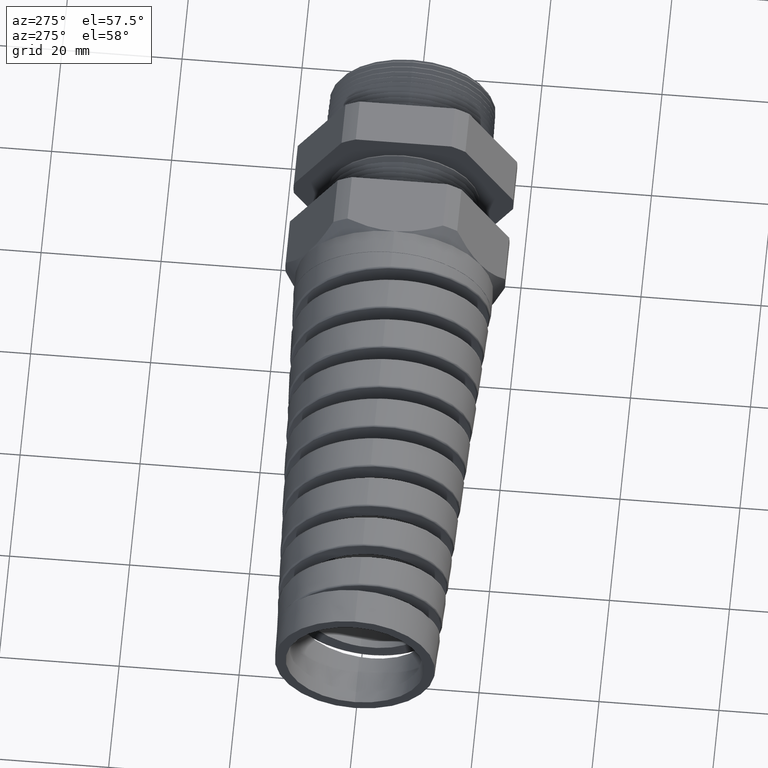
[diagram: clean part render]
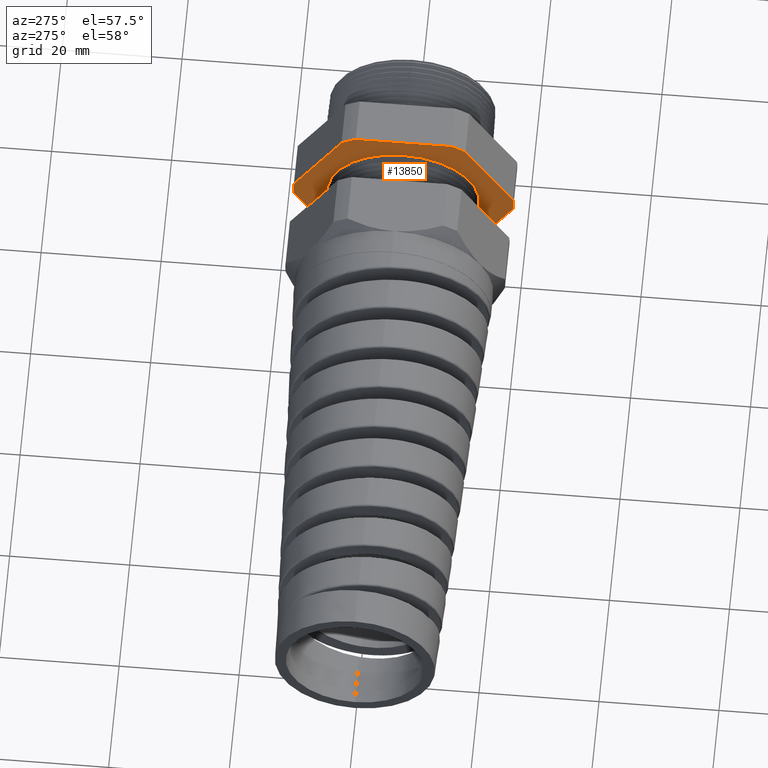
[diagram: same view with one face highlighted and labeled with its STEP entity id]
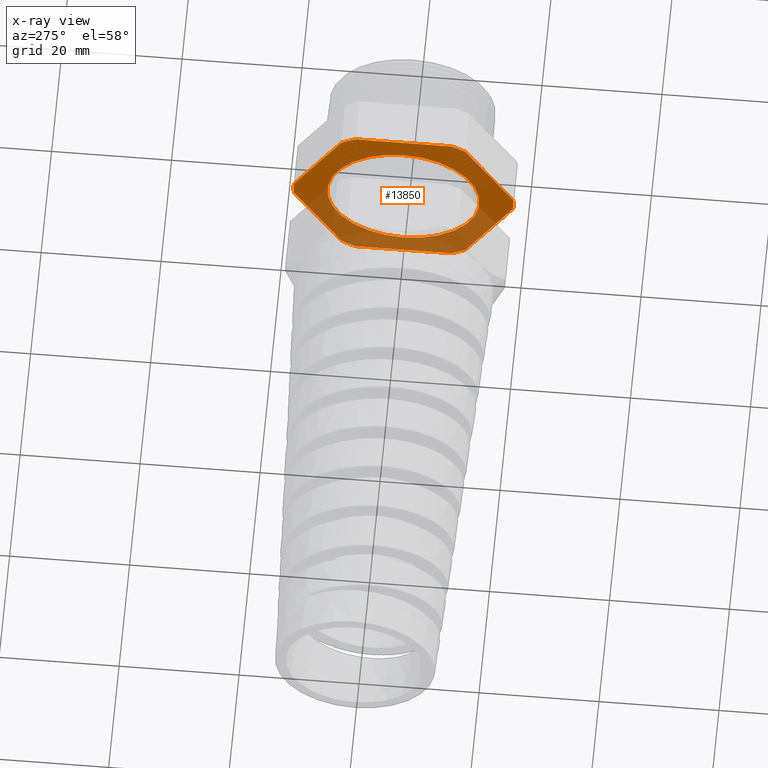
[diagram: x-ray of the same camera — body ghosted, the highlighted face saturated]
A machine part, auxiliary view. The second image highlights one B-rep face of the part: STEP entity #13850.
The next image is the same camera in x-ray: the body ghosted, the highlighted face saturated — about 41% of this face is hidden behind the body in this view.
In plain terms, the highlighted planar face has unit normal (-1, 0, 0).
Its self-contained STEP definition (entity closure, byte-faithful):
#115 = VERTEX_POINT ( 'NONE', #1182 ) ;
#117 = EDGE_CURVE ( 'NONE', #132, #115, #1181, .T. ) ;
#123 = VERTEX_POINT ( 'NONE', #1171 ) ;
#125 = EDGE_CURVE ( 'NONE', #146, #123, #1170, .T. ) ;
#132 = VERTEX_POINT ( 'NONE', #1156 ) ;
#134 = EDGE_CURVE ( 'NONE', #123, #132, #1155, .T. ) ;
#146 = VERTEX_POINT ( 'NONE', #1197 ) ;
#160 = VERTEX_POINT ( 'NONE', #1243 ) ;
#162 = EDGE_CURVE ( 'NONE', #230, #160, #1242, .T. ) ;
#168 = VERTEX_POINT ( 'NONE', #1233 ) ;
#170 = EDGE_CURVE ( 'NONE', #185, #168, #1232, .T. ) ;
#176 = VERTEX_POINT ( 'NONE', #1217 ) ;
#178 = EDGE_CURVE ( 'NONE', #115, #176, #1281, .T. ) ;
#185 = VERTEX_POINT ( 'NONE', #1266 ) ;
#187 = EDGE_CURVE ( 'NONE', #176, #185, #1265, .T. ) ;
#202 = VERTEX_POINT ( 'NONE', #1298 ) ;
#204 = EDGE_CURVE ( 'NONE', #221, #202, #1297, .T. ) ;
#211 = VERTEX_POINT ( 'NONE', #1282 ) ;
#213 = EDGE_CURVE ( 'NONE', #202, #211, #1346, .T. ) ;
#221 = VERTEX_POINT ( 'NONE', #1332 ) ;
#223 = EDGE_CURVE ( 'NONE', #160, #221, #1331, .T. ) ;
#230 = VERTEX_POINT ( 'NONE', #1317 ) ;
#232 = EDGE_CURVE ( 'NONE', #168, #230, #1316, .T. ) ;
#260 = VERTEX_POINT ( 'NONE', #1384 ) ;
#262 = EDGE_CURVE ( 'NONE', #263, #260, #1383, .T. ) ;
#263 = VERTEX_POINT ( 'NONE', #1378 ) ;
#1154 = CARTESIAN_POINT ( 'NONE',  ( -0.6052755905511810800, 0.0000000000000000000, 0.0000000000000000000 ) ) ;
#1155 = CIRCLE ( 'NONE', #1216, 0.7215000000000000300 ) ;
#1156 = CARTESIAN_POINT ( 'NONE',  ( -0.6052755905511810800, 0.3131489262315936800, -0.6500000000000000200 ) ) ;
#1167 = DIRECTION ( 'NONE',  ( 0.0000000000000000000, -0.4999999999999997200, -0.8660254037844388200 ) ) ;
#1168 = VECTOR ( 'NONE', #1167, 39.37007874015748100 ) ;
#1169 = CARTESIAN_POINT ( 'NONE',  ( -0.6052755905511809600, 0.8879165124598849000, 0.2379165124598849600 ) ) ;
#1170 = LINE ( 'NONE', #1169, #1168 ) ;
#1171 = CARTESIAN_POINT ( 'NONE',  ( -0.6052755905511809600, 0.4063420493440887400, -0.5961949252843789000 ) ) ;
#1178 = DIRECTION ( 'NONE',  ( 0.0000000000000000000, -1.000000000000000000, 0.0000000000000000000 ) ) ;
#1179 = VECTOR ( 'NONE', #1178, 39.37007874015748100 ) ;
#1180 = CARTESIAN_POINT ( 'NONE',  ( -0.6052755905511809600, 1.299999999999999800, -0.6500000000000000200 ) ) ;
#1181 = LINE ( 'NONE', #1180, #1179 ) ;
#1182 = CARTESIAN_POINT ( 'NONE',  ( -0.6052755905511810800, -0.3131489262315936800, -0.6500000000000000200 ) ) ;
#1197 = CARTESIAN_POINT ( 'NONE',  ( -0.6052755905511810800, 0.7194909755756819800, -0.05380507471562057800 ) ) ;
#1214 = DIRECTION ( 'NONE',  ( 0.0000000000000000000, 0.0000000000000000000, 1.000000000000000000 ) ) ;
#1215 = DIRECTION ( 'NONE',  ( -1.000000000000000000, 0.0000000000000000000, 0.0000000000000000000 ) ) ;
#1216 = AXIS2_PLACEMENT_3D ( 'NONE', #1154, #1215, #1214 ) ;
#1217 = CARTESIAN_POINT ( 'NONE',  ( -0.6052755905511810800, -0.4063420493440886300, -0.5961949252843790100 ) ) ;
#1228 = DIRECTION ( 'NONE',  ( 0.0000000000000000000, 0.0000000000000000000, 1.000000000000000000 ) ) ;
#1229 = DIRECTION ( 'NONE',  ( -1.000000000000000000, 0.0000000000000000000, 0.0000000000000000000 ) ) ;
#1230 = CARTESIAN_POINT ( 'NONE',  ( -0.6052755905511810800, 0.0000000000000000000, 0.0000000000000000000 ) ) ;
#1231 = AXIS2_PLACEMENT_3D ( 'NONE', #1230, #1229, #1228 ) ;
#1232 = CIRCLE ( 'NONE', #1231, 0.7215000000000000300 ) ;
#1233 = CARTESIAN_POINT ( 'NONE',  ( -0.6052755905511810800, -0.7194909755756819800, 0.05380507471562089000 ) ) ;
#1238 = DIRECTION ( 'NONE',  ( 0.0000000000000000000, 0.0000000000000000000, 1.000000000000000000 ) ) ;
#1239 = DIRECTION ( 'NONE',  ( -1.000000000000000000, 0.0000000000000000000, 0.0000000000000000000 ) ) ;
#1240 = CARTESIAN_POINT ( 'NONE',  ( -0.6052755905511810800, 0.0000000000000000000, 0.0000000000000000000 ) ) ;
#1241 = AXIS2_PLACEMENT_3D ( 'NONE', #1240, #1239, #1238 ) ;
#1242 = CIRCLE ( 'NONE', #1241, 0.7215000000000000300 ) ;
#1243 = CARTESIAN_POINT ( 'NONE',  ( -0.6052755905511810800, -0.3131489262315937400, 0.6500000000000000200 ) ) ;
#1262 = DIRECTION ( 'NONE',  ( 0.0000000000000000000, -0.5000000000000000000, 0.8660254037844386000 ) ) ;
#1263 = VECTOR ( 'NONE', #1262, 39.37007874015748900 ) ;
#1264 = CARTESIAN_POINT ( 'NONE',  ( -0.6052755905511809600, -0.2379165124598852700, -0.8879165124598851200 ) ) ;
#1265 = LINE ( 'NONE', #1264, #1263 ) ;
#1266 = CARTESIAN_POINT ( 'NONE',  ( -0.6052755905511810800, -0.7194909755756818700, -0.05380507471562150100 ) ) ;
#1277 = DIRECTION ( 'NONE',  ( 0.0000000000000000000, 0.0000000000000000000, 1.000000000000000000 ) ) ;
#1278 = DIRECTION ( 'NONE',  ( -1.000000000000000000, 0.0000000000000000000, 0.0000000000000000000 ) ) ;
#1279 = CARTESIAN_POINT ( 'NONE',  ( -0.6052755905511810800, 0.0000000000000000000, 0.0000000000000000000 ) ) ;
#1280 = AXIS2_PLACEMENT_3D ( 'NONE', #1279, #1278, #1277 ) ;
#1281 = CIRCLE ( 'NONE', #1280, 0.7215000000000000300 ) ;
#1282 = CARTESIAN_POINT ( 'NONE',  ( -0.6052755905511810800, 0.7194909755756819800, 0.05380507471562048800 ) ) ;
#1293 = DIRECTION ( 'NONE',  ( 0.0000000000000000000, 0.0000000000000000000, 1.000000000000000000 ) ) ;
#1294 = DIRECTION ( 'NONE',  ( -1.000000000000000000, 0.0000000000000000000, 0.0000000000000000000 ) ) ;
#1295 = CARTESIAN_POINT ( 'NONE',  ( -0.6052755905511810800, 0.0000000000000000000, 0.0000000000000000000 ) ) ;
#1296 = AXIS2_PLACEMENT_3D ( 'NONE', #1295, #1294, #1293 ) ;
#1297 = CIRCLE ( 'NONE', #1296, 0.7215000000000000300 ) ;
#1298 = CARTESIAN_POINT ( 'NONE',  ( -0.6052755905511810800, 0.4063420493440886300, 0.5961949252843790100 ) ) ;
#1313 = DIRECTION ( 'NONE',  ( 0.0000000000000000000, 0.4999999999999997200, 0.8660254037844388200 ) ) ;
#1314 = VECTOR ( 'NONE', #1313, 39.37007874015748900 ) ;
#1315 = CARTESIAN_POINT ( 'NONE',  ( -0.6052755905511809600, -0.2379165124598858200, 0.8879165124598849000 ) ) ;
#1316 = LINE ( 'NONE', #1315, #1314 ) ;
#1317 = CARTESIAN_POINT ( 'NONE',  ( -0.6052755905511810800, -0.4063420493440887400, 0.5961949252843790100 ) ) ;
#1328 = DIRECTION ( 'NONE',  ( 0.0000000000000000000, 1.000000000000000000, 0.0000000000000000000 ) ) ;
#1329 = VECTOR ( 'NONE', #1328, 39.37007874015748100 ) ;
#1330 = CARTESIAN_POINT ( 'NONE',  ( -0.6052755905511809600, 1.299999999999999800, 0.6500000000000000200 ) ) ;
#1331 = LINE ( 'NONE', #1330, #1329 ) ;
#1332 = CARTESIAN_POINT ( 'NONE',  ( -0.6052755905511810800, 0.3131489262315935700, 0.6500000000000000200 ) ) ;
#1343 = DIRECTION ( 'NONE',  ( 0.0000000000000000000, 0.4999999999999997200, -0.8660254037844388200 ) ) ;
#1344 = VECTOR ( 'NONE', #1343, 39.37007874015748900 ) ;
#1345 = CARTESIAN_POINT ( 'NONE',  ( -0.6052755905511809600, 0.8879165124598849000, -0.2379165124598849900 ) ) ;
#1346 = LINE ( 'NONE', #1345, #1344 ) ;
#1378 = CARTESIAN_POINT ( 'NONE',  ( -0.6052755905511809600, 0.0000000000000000000, -0.4995000000000000000 ) ) ;
#1379 = DIRECTION ( 'NONE',  ( 0.0000000000000000000, 0.0000000000000000000, -1.000000000000000000 ) ) ;
#1380 = DIRECTION ( 'NONE',  ( 1.000000000000000000, 0.0000000000000000000, 0.0000000000000000000 ) ) ;
#1381 = CARTESIAN_POINT ( 'NONE',  ( -0.6052755905511809600, 0.0000000000000000000, 0.0000000000000000000 ) ) ;
#1382 = AXIS2_PLACEMENT_3D ( 'NONE', #1381, #1380, #1379 ) ;
#1383 = CIRCLE ( 'NONE', #1382, 0.4995000000000000000 ) ;
#1384 = CARTESIAN_POINT ( 'NONE',  ( -0.6052755905511809600, 6.117110761741029900E-017, 0.4995000000000000000 ) ) ;
#11231 = DIRECTION ( 'NONE',  ( 0.0000000000000000000, 0.0000000000000000000, -1.000000000000000000 ) ) ;
#11232 = DIRECTION ( 'NONE',  ( 1.000000000000000000, 0.0000000000000000000, 0.0000000000000000000 ) ) ;
#11233 = CARTESIAN_POINT ( 'NONE',  ( -0.6052755905511809600, 0.0000000000000000000, 0.0000000000000000000 ) ) ;
#11234 = AXIS2_PLACEMENT_3D ( 'NONE', #11233, #11232, #11231 ) ;
#11235 = CIRCLE ( 'NONE', #11234, 0.4995000000000000000 ) ;
#11236 = DIRECTION ( 'NONE',  ( 0.0000000000000000000, 0.0000000000000000000, 1.000000000000000000 ) ) ;
#11237 = DIRECTION ( 'NONE',  ( -1.000000000000000000, 0.0000000000000000000, 0.0000000000000000000 ) ) ;
#11238 = CARTESIAN_POINT ( 'NONE',  ( -0.6052755905511809600, 1.299999999999999800, 0.0000000000000000000 ) ) ;
#11239 = AXIS2_PLACEMENT_3D ( 'NONE', #11238, #11237, #11236 ) ;
#11240 = PLANE ( 'NONE',  #11239 ) ;
#11241 = FACE_OUTER_BOUND ( 'NONE', #13484, .T. ) ;
#11246 = FACE_BOUND ( 'NONE', #13308, .T. ) ;
#13298 = ORIENTED_EDGE ( 'NONE', *, *, #170, .T. ) ;
#13308 = EDGE_LOOP ( 'NONE', ( #13396, #13422 ) ) ;
#13316 = ORIENTED_EDGE ( 'NONE', *, *, #178, .T. ) ;
#13319 = ORIENTED_EDGE ( 'NONE', *, *, #187, .T. ) ;
#13349 = ORIENTED_EDGE ( 'NONE', *, *, #213, .T. ) ;
#13387 = ORIENTED_EDGE ( 'NONE', *, *, #117, .T. ) ;
#13396 = ORIENTED_EDGE ( 'NONE', *, *, #262, .T. ) ;
#13416 = ORIENTED_EDGE ( 'NONE', *, *, #134, .T. ) ;
#13422 = ORIENTED_EDGE ( 'NONE', *, *, #14989, .T. ) ;
#13425 = ORIENTED_EDGE ( 'NONE', *, *, #16069, .T. ) ;
#13462 = ORIENTED_EDGE ( 'NONE', *, *, #125, .T. ) ;
#13484 = EDGE_LOOP ( 'NONE', ( #13349, #13425, #13462, #13416, #13387, #13316, #13319, #13298, #14477, #14048, #13915, #15935 ) ) ;
#13850 = ADVANCED_FACE ( 'NONE', ( #11246, #11241 ), #11240, .T. ) ;
#13915 = ORIENTED_EDGE ( 'NONE', *, *, #223, .T. ) ;
#14048 = ORIENTED_EDGE ( 'NONE', *, *, #162, .T. ) ;
#14176 = DIRECTION ( 'NONE',  ( 0.0000000000000000000, 0.0000000000000000000, 1.000000000000000000 ) ) ;
#14177 = DIRECTION ( 'NONE',  ( -1.000000000000000000, 0.0000000000000000000, 0.0000000000000000000 ) ) ;
#14178 = CARTESIAN_POINT ( 'NONE',  ( -0.6052755905511810800, 0.0000000000000000000, 0.0000000000000000000 ) ) ;
#14179 = AXIS2_PLACEMENT_3D ( 'NONE', #14178, #14177, #14176 ) ;
#14180 = CIRCLE ( 'NONE', #14179, 0.7215000000000000300 ) ;
#14477 = ORIENTED_EDGE ( 'NONE', *, *, #232, .T. ) ;
#14989 = EDGE_CURVE ( 'NONE', #260, #263, #11235, .T. ) ;
#15935 = ORIENTED_EDGE ( 'NONE', *, *, #204, .T. ) ;
#16069 = EDGE_CURVE ( 'NONE', #211, #146, #14180, .T. ) ;